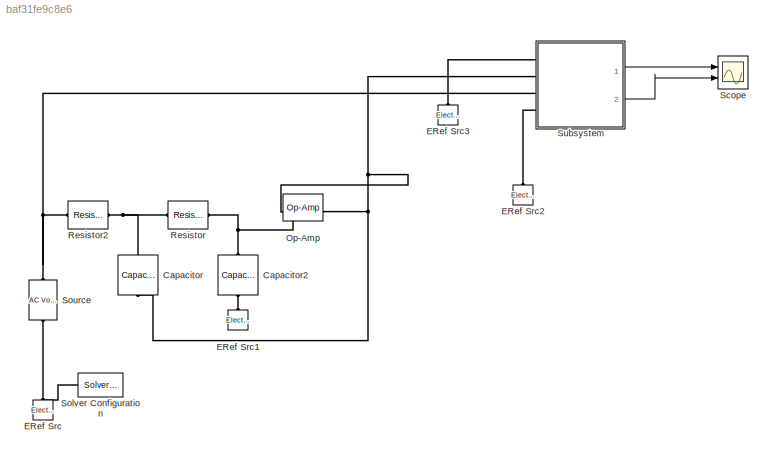
MODEL slx_baf31fe9c8e6
KIND model
CONFIG AbsTol = auto
CONFIG EnableMultiTasking = on
CONFIG FixedStep = 1e-6
CONFIG MaxStep = 3e-5
CONFIG MinStep = auto
CONFIG PreLoadFcn = %% Global model parameters\nfs = 1000; % A-to-D sampling rate\n\n%% Filter design\nf1 = 500; % Filter cut-off frequency\nn = 4;    % Filter order\nw1 = 2*pi*f1;                                                                                                                                                                                                                                                      ...<+3833ch>
CONFIG RelTol = 1e-3
CONFIG SampleTimeConstraint = Unconstrained
CONFIG Solver = FixedStepAuto
CONFIG SolverName = FixedStepAuto
CONFIG StartTime = 0.0
CONFIG StopTime = 0.1
BLOCK [Reference] Capacitor  REF=elec_lib/Passive Devices/Capacitor
  Ports = [0, 0, 0, 0, 0, 1, 1]
  SourceBlock = elec_lib/Passive Devices/Capacitor
  SourceProductBaseCode = SN
  SourceProductName = Simscape Electronics
  SourceType = Capacitor
BLOCK [Reference] Capacitor2  REF=elec_lib/Passive Devices/Capacitor
  Ports = [0, 0, 0, 0, 0, 1, 1]
  SourceBlock = elec_lib/Passive Devices/Capacitor
  SourceProductBaseCode = SN
  SourceProductName = Simscape Electronics
  SourceType = Capacitor
BLOCK [Reference] ERef Src  REF=fl_lib/Electrical/Electrical Elements/Electrical Reference
  Ports = [0, 0, 0, 0, 0, 1]
  SourceBlock = fl_lib/Electrical/Electrical Elements/Electrical Reference
  SourceProductName = Foundation Library
  SourceType = Electrical Reference
BLOCK [Reference] ERef Src1  REF=fl_lib/Electrical/Electrical Elements/Electrical Reference
  Ports = [0, 0, 0, 0, 0, 1]
  SourceBlock = fl_lib/Electrical/Electrical Elements/Electrical Reference
  SourceProductName = Foundation Library
  SourceType = Electrical Reference
BLOCK [Reference] ERef Src2  REF=fl_lib/Electrical/Electrical Elements/Electrical Reference
  Ports = [0, 0, 0, 0, 0, 1]
  SourceBlock = fl_lib/Electrical/Electrical Elements/Electrical Reference
  SourceProductName = Foundation Library
  SourceType = Electrical Reference
BLOCK [Reference] ERef Src3  REF=fl_lib/Electrical/Electrical Elements/Electrical Reference
  Ports = [0, 0, 0, 0, 0, 1]
  SourceBlock = fl_lib/Electrical/Electrical Elements/Electrical Reference
  SourceProductName = Foundation Library
  SourceType = Electrical Reference
BLOCK [Reference] Op-Amp  REF=fl_lib/Electrical/Electrical Elements/Op-Amp
  Ports = [0, 0, 0, 0, 0, 2, 1]
  SourceBlock = fl_lib/Electrical/Electrical Elements/Op-Amp
  SourceProductBaseCode = SS
  SourceProductName = Simscape
  SourceType = Op-Amp
BLOCK [Reference] Resistor  REF=elec_lib/Passive Devices/Resistor
  Ports = [0, 0, 0, 0, 0, 1, 1]
  SourceBlock = elec_lib/Passive Devices/Resistor
  SourceProductBaseCode = SN
  SourceProductName = Simscape Electronics
  SourceType = Resistor
BLOCK [Reference] Resistor2  REF=elec_lib/Passive Devices/Resistor
  Ports = [0, 0, 0, 0, 0, 1, 1]
  SourceBlock = elec_lib/Passive Devices/Resistor
  SourceProductBaseCode = SN
  SourceProductName = Simscape Electronics
  SourceType = Resistor
BLOCK [Scope] Scope
  Floating = off
  NumInputPorts = 2
  Ports = [2]
  ScopeSpecificationString = Simulink.scopes.TimeScopeBlockCfg('CurrentConfiguration', extmgr.ConfigurationSet(extmgr.Configuration('Core','General UI',true),extmgr.Configuration('Core','Source UI',true),extmgr.Configuration('Sources','WiredSimulink',true,'DataLoggingVariableName','ScopeData2','DataLoggingMaxPoints','500000','DataLoggingSaveFormat','Array','DataLoggingDecimation','1'),extmgr.Configuration('Visuals','Time Doma...<+2775ch>
BLOCK [Reference] Solver Configuration  REF=nesl_utility/Solver
Configuration
  Ports = [0, 0, 0, 0, 0, 0, 1]
  SourceBlock = nesl_utility/Solver\nConfiguration
  SourceProductBaseCode = SS
  SourceType = Solver\nConfiguration
BLOCK [Reference] Source  REF=fl_lib/Electrical/Electrical Sources/AC Voltage Source
  AttributesFormatString = %<amp> %<amp_unit>\n%<frequency> %<frequency_unit>
  Ports = [0, 0, 0, 0, 0, 1, 1]
  SourceBlock = fl_lib/Electrical/Electrical Sources/AC Voltage Source
  SourceProductName = Foundation Library
  SourceType = AC Voltage Source
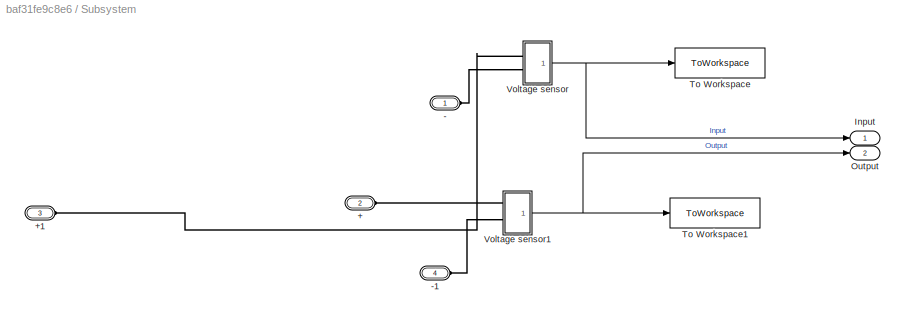
BLOCK [SubSystem] Subsystem
  Ports = [0, 2, 0, 0, 0, 4]
  RequestExecContextInheritance = off
BLOCK [PMIOPort] Subsystem/+
  Port = 2
  Side = Left
BLOCK [PMIOPort] Subsystem/+1
  Port = 3
  Side = Left
BLOCK [PMIOPort] Subsystem/-
  Side = Left
BLOCK [PMIOPort] Subsystem/-1
  Port = 4
  Side = Left
BLOCK [Outport] Subsystem/Input
  IconDisplay = Port number
  VectorParamsAs1DForOutWhenUnconnected = on
BLOCK [Outport] Subsystem/Output
  IconDisplay = Port number
  Port = 2
  VectorParamsAs1DForOutWhenUnconnected = on
BLOCK [ToWorkspace] Subsystem/To Workspace
  FixptAsFi = on
  MaxDataPoints = inf
  Ports = [1]
  SampleTime = -1
  Save2DSignal = 3-D array (concatenate along third dimension)
  SaveFormat = Timeseries
  VariableName = input
BLOCK [ToWorkspace] Subsystem/To Workspace1
  FixptAsFi = on
  MaxDataPoints = inf
  Ports = [1]
  SampleTime = -1
  Save2DSignal = 3-D array (concatenate along third dimension)
  SaveFormat = Timeseries
  VariableName = output
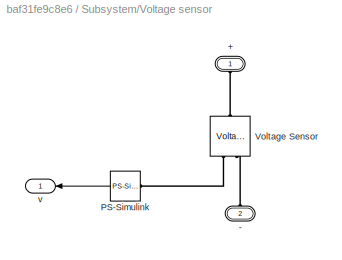
BLOCK [SubSystem] Subsystem/Voltage sensor
  CopyFcn = set_param(gcb,'LinkStatus','none')
  Ports = [0, 1, 0, 0, 0, 2]
  RequestExecContextInheritance = off
BLOCK [PMIOPort] Subsystem/Voltage sensor/+
  Side = Left
BLOCK [PMIOPort] Subsystem/Voltage sensor/-
  Port = 2
  Side = Left
BLOCK [Reference] Subsystem/Voltage sensor/PS-Simulink  REF=nesl_utility/PS-Simulink
Converter
  Ports = [0, 1, 0, 0, 0, 1]
  SourceBlock = nesl_utility/PS-Simulink\nConverter
  SourceProductBaseCode = SS
  SourceType = PS-Simulink\nConverter
BLOCK [Reference] Subsystem/Voltage sensor/Voltage Sensor  REF=fl_lib/Electrical/Electrical Sensors/Voltage Sensor
  Ports = [0, 0, 0, 0, 0, 1, 2]
  SourceBlock = fl_lib/Electrical/Electrical Sensors/Voltage Sensor
  SourceProductName = Foundation Library
  SourceType = Voltage Sensor
BLOCK [Outport] Subsystem/Voltage sensor/v
  IconDisplay = Port number
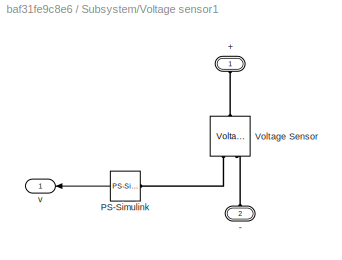
BLOCK [SubSystem] Subsystem/Voltage sensor1
  CopyFcn = set_param(gcb,'LinkStatus','none')
  Ports = [0, 1, 0, 0, 0, 2]
  RequestExecContextInheritance = off
BLOCK [PMIOPort] Subsystem/Voltage sensor1/+
  Side = Left
BLOCK [PMIOPort] Subsystem/Voltage sensor1/-
  Port = 2
  Side = Left
BLOCK [Reference] Subsystem/Voltage sensor1/PS-Simulink  REF=nesl_utility/PS-Simulink
Converter
  Ports = [0, 1, 0, 0, 0, 1]
  SourceBlock = nesl_utility/PS-Simulink\nConverter
  SourceProductBaseCode = SS
  SourceType = PS-Simulink\nConverter
BLOCK [Reference] Subsystem/Voltage sensor1/Voltage Sensor  REF=fl_lib/Electrical/Electrical Sensors/Voltage Sensor
  Ports = [0, 0, 0, 0, 0, 1, 2]
  SourceBlock = fl_lib/Electrical/Electrical Sensors/Voltage Sensor
  SourceProductName = Foundation Library
  SourceType = Voltage Sensor
BLOCK [Outport] Subsystem/Voltage sensor1/v
  IconDisplay = Port number
LINE Subsystem/Voltage sensor/PS-Simulink:1 -> Subsystem/Voltage sensor/v:1
LINE Subsystem/Voltage sensor1/PS-Simulink:1 -> Subsystem/Voltage sensor1/v:1
NET Subsystem/Voltage sensor1:1 -> Subsystem/Output:1, Subsystem/To Workspace1:1
NET Subsystem/Voltage sensor:1 -> Subsystem/Input:1, Subsystem/To Workspace:1
LINE Subsystem:1 -> Scope:1
LINE Subsystem:2 -> Scope:2
PNET net1: Capacitor2:LConn1 -- Op-Amp:LConn1 -- Resistor:RConn1
PLINE Capacitor2:RConn1 -- ERef Src1:LConn1
PNET net2: Capacitor:LConn1 -- Resistor2:RConn1 -- Resistor:LConn1
PNET net3: Capacitor:RConn1 -- Op-Amp:LConn2 -- Op-Amp:RConn1 -- Subsystem:LConn2
PLINE ERef Src2:LConn1 -- Subsystem:LConn4
PLINE ERef Src3:LConn1 -- Subsystem:LConn1
PNET net4: ERef Src:LConn1 -- Solver Configuration:RConn1 -- Source:RConn1
PNET net5: Resistor2:LConn1 -- Source:LConn1 -- Subsystem:LConn3
PLINE Subsystem/+1:RConn1 -- Subsystem/Voltage sensor:LConn1
PLINE Subsystem/+:RConn1 -- Subsystem/Voltage sensor1:LConn1
PLINE Subsystem/-1:RConn1 -- Subsystem/Voltage sensor1:LConn2
PLINE Subsystem/-:RConn1 -- Subsystem/Voltage sensor:LConn2
PLINE Subsystem/Voltage sensor/+:RConn1 -- Subsystem/Voltage sensor/Voltage Sensor:LConn1
PLINE Subsystem/Voltage sensor/-:RConn1 -- Subsystem/Voltage sensor/Voltage Sensor:RConn2
PLINE Subsystem/Voltage sensor/PS-Simulink:LConn1 -- Subsystem/Voltage sensor/Voltage Sensor:RConn1
PLINE Subsystem/Voltage sensor1/+:RConn1 -- Subsystem/Voltage sensor1/Voltage Sensor:LConn1
PLINE Subsystem/Voltage sensor1/-:RConn1 -- Subsystem/Voltage sensor1/Voltage Sensor:RConn2
PLINE Subsystem/Voltage sensor1/PS-Simulink:LConn1 -- Subsystem/Voltage sensor1/Voltage Sensor:RConn1
note: NET lines group one-source signal fan-out (src -> all destinations, sorted); 1:1 wires keep LINE; PNET lines group multi-terminal physical nets as a canonical sorted terminal list (undirected conserving connections); 2-terminal nets keep the pairwise PLINE form
